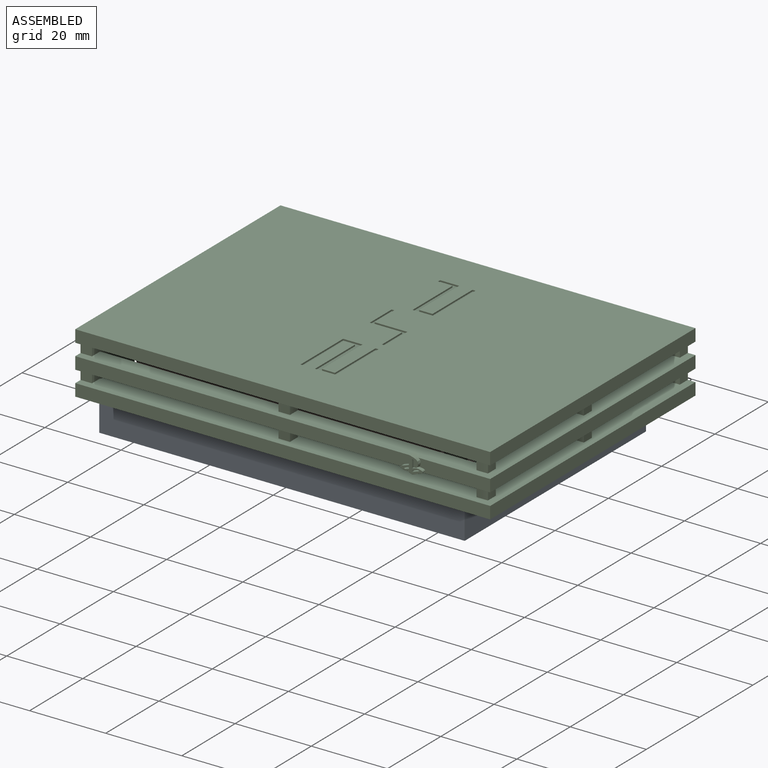
[diagram: assembled view]
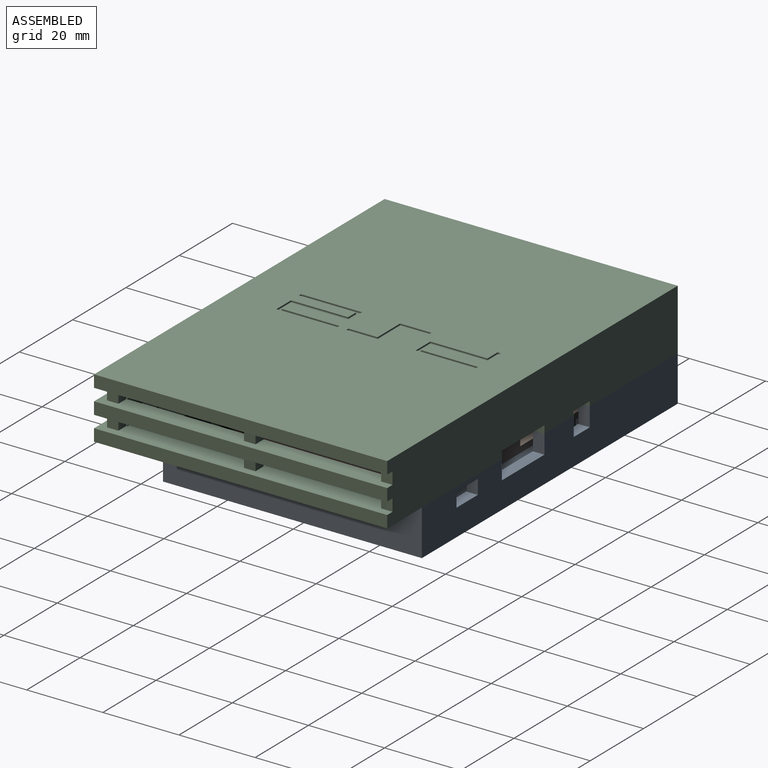
[diagram: assembled view, second angle]
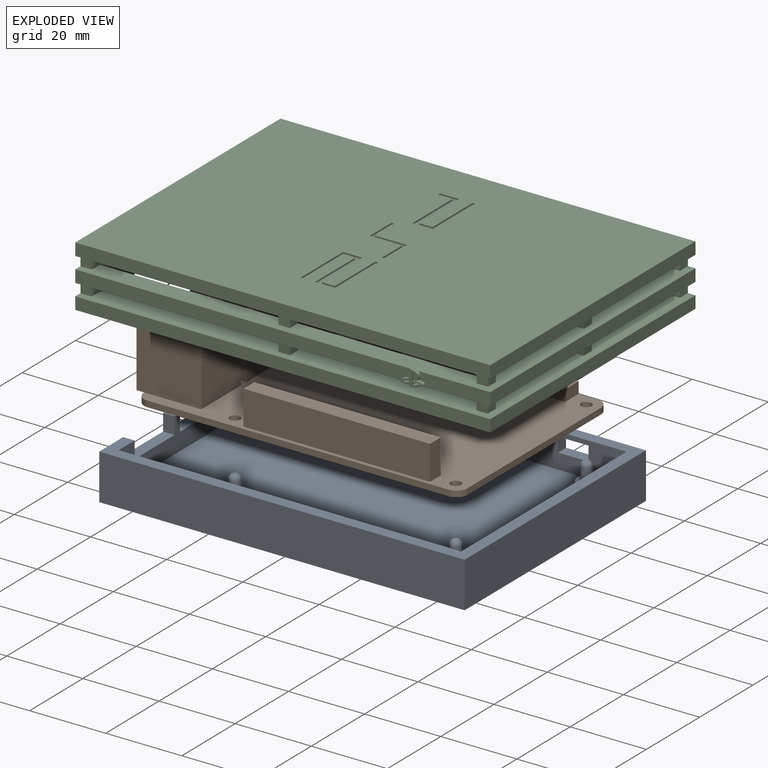
[diagram: exploded view]
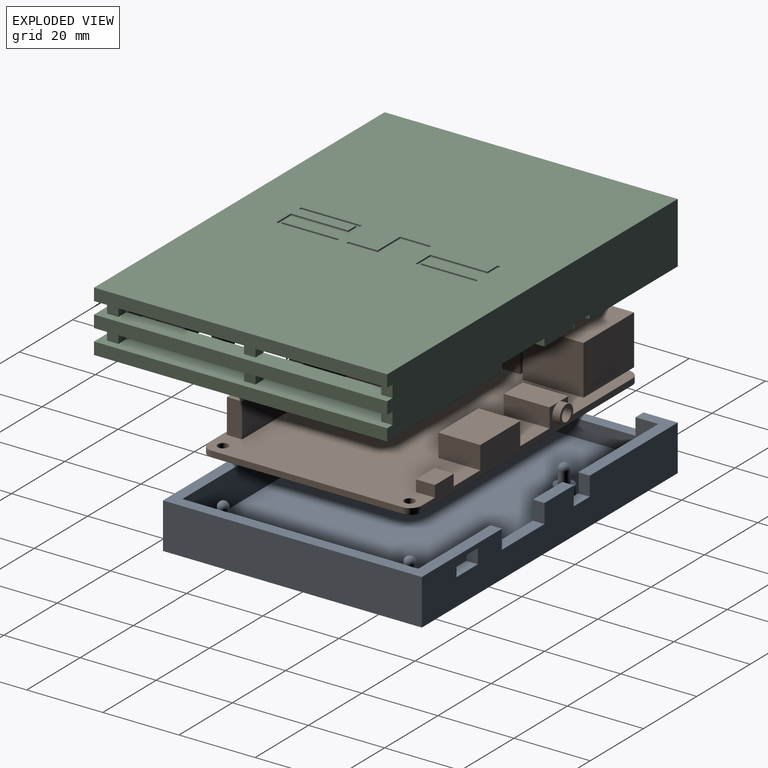
[diagram: exploded view, second angle]
ASSEMBLY  parts=3 mates=2
PART A: 80 faces, bbox 96x68x14 mm
  f0: plane 33x9mm, normal (0,0,1), area 117mm2, adj f2,f3,f8,f9,f37,f77
  f1: plane 11x3mm, normal (0,0,1), area 33mm2, adj f2,f3,f75,f78
  f2: plane 96x12mm, normal (0,-1,0), area 1011.6mm2, adj f0,f1,f4,f7,f8,f12,f70,f71
  f3: plane 90x9mm, normal (0,1,0), area 669.6mm2, adj f0,f1,f7,f9,f10,f13,f70,f71
  f4: plane 96x68mm, normal (0,0,-1), area 6378mm2, adj f2,f8,f11,f12,f40,f41,f42,f43
  f5: plane 3x2mm, normal (0,0,1), area 6mm2, adj f8,f9,f34,f39
  f6: plane 3x2mm, normal (0,0,1), area 6mm2, adj f8,f9,f31,f36
  f7: plane 96x68mm, normal (0,0,1), area 582mm2, adj f2,f3,f8,f9,f11,f12,f13,f14
  f8: plane 68x12mm, normal (1,0,0), area 613.6mm2, adj f0,f2,f4,f5,f6,f7,f11,f31
  f9: plane 62x9mm, normal (-1,0,0), area 355.6mm2, adj f0,f3,f5,f6,f7,f10,f14,f31
  f10: plane 90x62mm, normal (0,0,1), area 5501.5mm2, adj f3,f9,f13,f14,f15,f19,f23,f27
  f11: plane 96x12mm, normal (0,1,0), area 1152mm2, adj f4,f7,f8,f12
  f12: plane 68x12mm, normal (-1,0,0), area 816mm2, adj f2,f4,f7,f11
  f13: plane 62x9mm, normal (1,0,0), area 558mm2, adj f3,f7,f10,f14
  f14: plane 90x9mm, normal (0,-1,0), area 810mm2, adj f7,f9,f10,f13
  f15: cylinder r=2.5mm len=5mm, axis (0,0,-1), area 47.1mm2, adj f10,f16
  f16: plane 5x5mm, normal (0,0,1), area 13.7mm2, adj f15,f18
  f17: sphere r=1.38mm, area 11.9mm2, adj f18
  f18: cylinder r=1.38mm len=3.63mm, axis (0,0,-1), area 31.3mm2, adj f16,f17
  f19: cylinder r=2.5mm len=5mm, axis (0,0,-1), area 47.1mm2, adj f10,f20
  f20: plane 5x5mm, normal (0,0,1), area 13.7mm2, adj f19,f22
  f21: sphere r=1.38mm, area 11.9mm2, adj f22
  f22: cylinder r=1.38mm len=3.63mm, axis (0,0,-1), area 31.3mm2, adj f20,f21
  f23: cylinder r=2.5mm len=5mm, axis (0,0,-1), area 47.1mm2, adj f10,f24
  f24: plane 5x5mm, normal (0,0,1), area 13.7mm2, adj f23,f26
  f25: sphere r=1.38mm, area 11.9mm2, adj f26
  f26: cylinder r=1.38mm len=3.63mm, axis (0,0,-1), area 31.3mm2, adj f24,f25
  f27: cylinder r=2.5mm len=5mm, axis (0,0,-1), area 47.1mm2, adj f10,f28
  f28: plane 5x5mm, normal (0,0,1), area 13.7mm2, adj f27,f30
  f29: sphere r=1.38mm, area 11.9mm2, adj f30
  f30: cylinder r=1.38mm len=3.63mm, axis (0,0,-1), area 31.3mm2, adj f28,f29
  f31: plane 4.4x3mm, normal (0,1,0), area 13.2mm2, adj f6,f8,f9,f32
  f32: plane 15x3mm, normal (0,0,1), area 45mm2, adj f8,f9,f31,f33
  f33: plane 4.4x3mm, normal (0,-1,0), area 13.2mm2, adj f7,f8,f9,f32
  f34: plane 4.4x3mm, normal (0,1,0), area 13.2mm2, adj f5,f8,f9,f35
  f35: plane 15x3mm, normal (0,0,1), area 45mm2, adj f8,f9,f34,f36
  f36: plane 4.4x3mm, normal (0,-1,0), area 13.2mm2, adj f6,f8,f9,f35
  f37: plane 4.4x3mm, normal (0,1,0), area 13.2mm2, adj f0,f8,f9,f38
  f38: plane 16x3mm, normal (0,0,1), area 48mm2, adj f8,f9,f37,f39
  f39: plane 4.4x3mm, normal (0,-1,0), area 13.2mm2, adj f5,f8,f9,f38
  f40: plane 5x2mm, normal (0,-1,0), area 10mm2, adj f4,f41,f43,f44
  f41: plane 5x2mm, normal (-1,0,0), area 10mm2, adj f4,f40,f42,f44
  f42: plane 5x2mm, normal (0,1,0), area 10mm2, adj f4,f41,f43,f44
  f43: plane 5x2mm, normal (1,0,0), area 10mm2, adj f4,f40,f42,f44
  f44: plane 5x5mm, normal (0,0,-1), area 25mm2, adj f40,f41,f42,f43
  f45: plane 5x2mm, normal (0,-1,0), area 10mm2, adj f4,f46,f48,f49
  f46: plane 5x2mm, normal (-1,0,0), area 10mm2, adj f4,f45,f47,f49
  f47: plane 5x2mm, normal (0,1,0), area 10mm2, adj f4,f46,f48,f49
  f48: plane 5x2mm, normal (1,0,0), area 10mm2, adj f4,f45,f47,f49
  f49: plane 5x5mm, normal (0,0,-1), area 25mm2, adj f45,f46,f47,f48
  f50: plane 5x2mm, normal (1,0,0), area 10mm2, adj f4,f51,f53,f54
  f51: plane 5x2mm, normal (0,-1,0), area 10mm2, adj f4,f50,f52,f54
  f52: plane 5x2mm, normal (-1,0,0), area 10mm2, adj f4,f51,f53,f54
  f53: plane 5x2mm, normal (0,1,0), area 10mm2, adj f4,f50,f52,f54
  f54: plane 5x5mm, normal (0,0,-1), area 25mm2, adj f50,f51,f52,f53
  f55: plane 5x2mm, normal (0,1,0), area 10mm2, adj f4,f56,f58,f59
  f56: plane 5x2mm, normal (1,0,0), area 10mm2, adj f4,f55,f57,f59
  f57: plane 5x2mm, normal (0,-1,0), area 10mm2, adj f4,f56,f58,f59
  f58: plane 5x2mm, normal (-1,0,0), area 10mm2, adj f4,f55,f57,f59
  f59: plane 5x5mm, normal (0,0,-1), area 25mm2, adj f55,f56,f57,f58
  f60: plane 5x2mm, normal (1,0,0), area 10mm2, adj f4,f61,f63,f64
  f61: plane 5x2mm, normal (0,-1,0), area 10mm2, adj f4,f60,f62,f64
  f62: plane 5x2mm, normal (-1,0,0), area 10mm2, adj f4,f61,f63,f64
  f63: plane 5x2mm, normal (0,1,0), area 10mm2, adj f4,f60,f62,f64
  f64: plane 5x5mm, normal (0,0,-1), area 25mm2, adj f60,f61,f62,f63
  f65: plane 5x2mm, normal (0,1,0), area 10mm2, adj f4,f66,f68,f69
  f66: plane 5x2mm, normal (1,0,0), area 10mm2, adj f4,f65,f67,f69
  f67: plane 5x2mm, normal (0,-1,0), area 10mm2, adj f4,f66,f68,f69
  f68: plane 5x2mm, normal (-1,0,0), area 10mm2, adj f4,f65,f67,f69
  f69: plane 5x5mm, normal (0,0,-1), area 25mm2, adj f65,f66,f67,f68
  f70: plane 8x3mm, normal (0,0,1), area 24mm2, adj f2,f3,f71,f73
  f71: plane 3.8x3mm, normal (-1,0,0), area 11.4mm2, adj f2,f3,f70,f72
  f72: plane 8x3mm, normal (0,0,-1), area 24mm2, adj f2,f3,f71,f73
  f73: plane 3.8x3mm, normal (1,0,0), area 11.4mm2, adj f2,f3,f70,f72
  f74: plane 16x3mm, normal (0,0,1), area 48mm2, adj f2,f3,f75,f76
  f75: plane 5x3mm, normal (-1,0,0), area 15mm2, adj f1,f2,f3,f74
  f76: plane 5x3mm, normal (1,0,0), area 15mm2, adj f2,f3,f7,f74
  f77: plane 5x3mm, normal (-1,0,0), area 15mm2, adj f0,f2,f3,f79
  f78: plane 5x3mm, normal (1,0,0), area 15mm2, adj f1,f2,f3,f79
  f79: plane 6x3mm, normal (0,0,1), area 18mm2, adj f2,f3,f77,f78
PART B: 86 faces, bbox 87x58x17.6 mm
  f0: plane 16x13mm, normal (1,0,0), area 95mm2, adj f27,f28,f29,f31,f69,f70,f71,f72
  f1: plane 16x15mm, normal (1,0,0), area 156mm2, adj f17,f18,f19,f21,f59,f60,f61,f62
  f2: plane 16x15mm, normal (1,0,0), area 156mm2, adj f22,f24,f25,f26,f49,f50,f51,f52
  f3: plane 85x56mm, normal (0,0,1), area 3526.5mm2, adj f4,f5,f6,f7,f8,f9,f10,f11
  f4: plane 79x1.6mm, normal (0,1,0), area 126.4mm2, adj f3,f5,f13,f16
  f5: cylinder r=3mm len=3mm, axis (0,0,1), area 7.5mm2, adj f3,f4,f6,f16
  f6: plane 50x1.6mm, normal (-1,0,0), area 80mm2, adj f3,f5,f7,f16
  f7: cylinder r=3mm len=3mm, axis (0,0,1), area 7.5mm2, adj f3,f6,f8,f16
  f8: plane 79x7.6mm, normal (0,-1,0), area 252.8mm2, adj f3,f7,f9,f16,f32,f34,f35,f36
  f9: cylinder r=3mm len=3mm, axis (0,0,1), area 7.5mm2, adj f3,f8,f10,f16
  f10: plane 50x1.6mm, normal (1,0,0), area 80mm2, adj f3,f9,f13,f16,f17,f26,f27
  f11: cylinder r=1.38mm len=2.75mm, axis (0,0,1), area 13.8mm2, adj f3,f16
  f12: cylinder r=1.38mm len=2.75mm, axis (0,0,1), area 13.8mm2, adj f3,f16
  f13: cylinder r=3mm len=3mm, axis (0,0,1), area 7.5mm2, adj f3,f4,f10,f16
  f14: cylinder r=1.38mm len=2.75mm, axis (0,0,1), area 13.8mm2, adj f3,f16
  f15: cylinder r=1.38mm len=2.75mm, axis (0,0,1), area 13.8mm2, adj f3,f16
  f16: plane 85x56mm, normal (0,0,-1), area 4728.5mm2, adj f4,f5,f6,f7,f8,f9,f10,f11
  f17: plane 15x2mm, normal (0,0,-1), area 30mm2, adj f1,f10,f18,f19
  f18: plane 17x16mm, normal (0,-1,0), area 272mm2, adj f1,f3,f17,f20,f21
  f19: plane 17x16mm, normal (0,1,0), area 272mm2, adj f1,f3,f17,f20,f21
  f20: plane 16x15mm, normal (-1,0,0), area 240mm2, adj f3,f18,f19,f21
  f21: plane 17x15mm, normal (0,0,1), area 255mm2, adj f1,f18,f19,f20
  f22: plane 17x16mm, normal (0,1,0), area 272mm2, adj f2,f3,f23,f25,f26
  f23: plane 16x15mm, normal (-1,0,0), area 240mm2, adj f3,f22,f24,f25
  f24: plane 17x16mm, normal (0,-1,0), area 272mm2, adj f2,f3,f23,f25,f26
  f25: plane 17x15mm, normal (0,0,1), area 255mm2, adj f2,f22,f23,f24
  f26: plane 15x2mm, normal (0,0,-1), area 30mm2, adj f2,f10,f22,f24
  f27: plane 16x2mm, normal (0,0,-1), area 32mm2, adj f0,f10,f28,f29
  f28: plane 19x13mm, normal (0,-1,0), area 247mm2, adj f0,f3,f27,f30,f31
  f29: plane 19x13mm, normal (0,1,0), area 247mm2, adj f0,f3,f27,f30,f31
  f30: plane 16x13mm, normal (-1,0,0), area 208mm2, adj f3,f28,f29,f31
  f31: plane 19x16mm, normal (0,0,1), area 304mm2, adj f0,f28,f29,f30
  f32: plane 12x5mm, normal (1,0,0), area 60mm2, adj f3,f8,f33,f35
  f33: plane 7x5mm, normal (0,1,0), area 35mm2, adj f3,f32,f34,f35
  f34: plane 12x5mm, normal (-1,0,0), area 60mm2, adj f3,f8,f33,f35
  f35: plane 12x7mm, normal (0,0,1), area 84mm2, adj f8,f32,f33,f34
  f36: plane 11x6mm, normal (1,0,0), area 66mm2, adj f3,f8,f37,f39
  f37: plane 15x6mm, normal (0,1,0), area 90mm2, adj f3,f36,f38,f39
  f38: plane 11x6mm, normal (-1,0,0), area 66mm2, adj f3,f8,f37,f39
  f39: plane 15x11mm, normal (0,0,1), area 165mm2, adj f8,f36,f37,f38
  f40: plane 7x3mm, normal (0,1,0), area 21mm2, adj f3,f41,f42,f43
  f41: plane 5x3mm, normal (-1,0,0), area 15mm2, adj f3,f8,f40,f43
  f42: plane 5x3mm, normal (1,0,0), area 15mm2, adj f3,f8,f40,f43
  f43: plane 7x5mm, normal (0,0,1), area 35mm2, adj f8,f40,f41,f42
  f44: plane 49x9mm, normal (0,1,0), area 441mm2, adj f3,f45,f47,f48
  f45: plane 9x4mm, normal (-1,0,0), area 36mm2, adj f3,f44,f46,f48
  f46: plane 49x9mm, normal (0,-1,0), area 441mm2, adj f3,f45,f47,f48
  f47: plane 9x4mm, normal (1,0,0), area 36mm2, adj f3,f44,f46,f48
  f48: plane 49x4mm, normal (0,0,1), area 196mm2, adj f44,f45,f46,f47
  f49: plane 9x3.5mm, normal (0,-1,0), area 31.5mm2, adj f2,f50,f52,f53
  f50: plane 12x9mm, normal (0,0,-1), area 108mm2, adj f2,f49,f51,f53
  f51: plane 9x3.5mm, normal (0,1,0), area 31.5mm2, adj f2,f50,f52,f53
  f52: plane 12x9mm, normal (0,0,1), area 108mm2, adj f2,f49,f51,f53
  f53: plane 12x3.5mm, normal (1,0,0), area 42mm2, adj f49,f50,f51,f52
  f54: plane 12x9mm, normal (0,0,-1), area 108mm2, adj f2,f55,f57,f58
  f55: plane 9x3.5mm, normal (0,1,0), area 31.5mm2, adj f2,f54,f56,f58
  f56: plane 12x9mm, normal (0,0,1), area 108mm2, adj f2,f55,f57,f58
  f57: plane 9x3.5mm, normal (0,-1,0), area 31.5mm2, adj f2,f54,f56,f58
  f58: plane 12x3.5mm, normal (1,0,0), area 42mm2, adj f54,f55,f56,f57
  f59: plane 9x3.5mm, normal (0,-1,0), area 31.5mm2, adj f1,f60,f62,f63
  f60: plane 12x9mm, normal (0,0,-1), area 108mm2, adj f1,f59,f61,f63
  f61: plane 9x3.5mm, normal (0,1,0), area 31.5mm2, adj f1,f60,f62,f63
  f62: plane 12x9mm, normal (0,0,1), area 108mm2, adj f1,f59,f61,f63
  f63: plane 12x3.5mm, normal (1,0,0), area 42mm2, adj f59,f60,f61,f62
  f64: plane 12x9mm, normal (0,0,-1), area 108mm2, adj f1,f65,f67,f68
  f65: plane 9x3.5mm, normal (0,1,0), area 31.5mm2, adj f1,f64,f66,f68
  f66: plane 12x9mm, normal (0,0,1), area 108mm2, adj f1,f65,f67,f68
  f67: plane 9x3.5mm, normal (0,-1,0), area 31.5mm2, adj f1,f64,f66,f68
  f68: plane 12x3.5mm, normal (1,0,0), area 42mm2, adj f64,f65,f66,f67
  f69: plane 14x10.5mm, normal (0,0,-1), area 147mm2, adj f0,f70,f80,f81
  f70: plane 10.5x7mm, normal (0,1,0), area 73.5mm2, adj f0,f69,f71,f81
  f71: plane 10.5x4mm, normal (0,0,1), area 42mm2, adj f0,f70,f72,f81
  f72: plane 10.5x2mm, normal (0,1,0), area 21mm2, adj f0,f71,f73,f81
  f73: plane 10.5x1.5mm, normal (0,0,1), area 15.8mm2, adj f0,f72,f74,f81
  f74: plane 10.5x1mm, normal (0,1,0), area 10.5mm2, adj f0,f73,f75,f81
  f75: plane 10.5x3mm, normal (0,0,1), area 31.5mm2, adj f0,f74,f76,f81
  f76: plane 10.5x1mm, normal (0,-1,0), area 10.5mm2, adj f0,f75,f77,f81
  f77: plane 10.5x1.5mm, normal (0,0,1), area 15.7mm2, adj f0,f76,f78,f81
  f78: plane 10.5x2mm, normal (0,-1,0), area 21mm2, adj f0,f77,f79,f81
  f79: plane 10.5x4mm, normal (0,0,1), area 42mm2, adj f0,f78,f80,f81
  f80: plane 10.5x7mm, normal (0,-1,0), area 73.5mm2, adj f0,f69,f79,f81
  f81: plane 14x10mm, normal (1,0,0), area 113mm2, adj f69,f70,f71,f72,f73,f74,f75,f76
  f82: cylinder r=2.5mm len=5mm, axis (0,1,0), area 31.4mm2, adj f8,f83
  f83: plane 5x5mm, normal (0,-1,0), area 10mm2, adj f82,f84
  f84: cylinder r=1.75mm len=5mm, axis (0,-1,0), area 55mm2, adj f83,f85
  f85: plane 3.5x3.5mm, normal (0,-1,0), area 9.6mm2, adj f84
PART C: 158 faces, bbox 109x78x20.4 mm
  f0: plane 11x3mm, normal (0,0,-1), area 33mm2, adj f2,f3,f152,f156
  f1: plane 33x9mm, normal (0,0,-1), area 117mm2, adj f2,f3,f24,f27,f149,f153
  f2: plane 109x16mm, normal (0,1,0), area 1692mm2, adj f0,f1,f6,f12,f13,f24,f28,f29
  f3: plane 104x13mm, normal (0,-1,0), area 1260mm2, adj f0,f1,f6,f12,f13,f23,f25,f27
  f4: plane 3x2mm, normal (0,0,-1), area 6mm2, adj f24,f27,f146,f150
  f5: plane 3x2mm, normal (0,0,-1), area 6mm2, adj f24,f27,f144,f147
  f6: plane 109x77mm, normal (0,0,-1), area 855.6mm2, adj f2,f3,f7,f8,f9,f12,f14,f19
  f7: plane 19.8x3.21mm, normal (0,-1,0), area 58.7mm2, adj f6,f51,f65,f120,f128,f129,f130,f131
  f8: plane 3.2x3mm, normal (1,0,0), area 9.6mm2, adj f6,f21,f53,f60
  f9: plane 3.2x3mm, normal (1,0,0), area 9.6mm2, adj f6,f53,f61,f62
  f10: plane 3.2x3mm, normal (1,0,0), area 9.6mm2, adj f18,f51,f52,f58
  f11: plane 3.2x3mm, normal (1,0,0), area 9.6mm2, adj f51,f52,f59,f63
  f12: plane 3.2x3mm, normal (1,0,0), area 9.6mm2, adj f2,f3,f6,f53
  f13: plane 3.2x3mm, normal (1,0,0), area 9.6mm2, adj f2,f3,f51,f52
  f14: plane 3.2x3mm, normal (-1,0,0), area 9.6mm2, adj f6,f21,f53,f60
  f15: plane 3.2x3mm, normal (-1,0,0), area 9.6mm2, adj f18,f51,f52,f58
  f16: plane 3.2x3mm, normal (0,-1,0), area 9.6mm2, adj f24,f27,f51,f52
  f17: plane 3.2x3mm, normal (0,-1,0), area 9.6mm2, adj f48,f50,f51,f52
  f18: plane 3.2x3mm, normal (0,-1,0), area 9.6mm2, adj f10,f15,f51,f52
  f19: plane 3.2x3mm, normal (0,-1,0), area 9.6mm2, adj f6,f24,f27,f53
  f20: plane 3.2x3mm, normal (0,-1,0), area 9.6mm2, adj f6,f49,f53,f54
  f21: plane 3.2x3mm, normal (0,-1,0), area 9.6mm2, adj f6,f8,f14,f53
  f22: plane 101x10mm, normal (0,1,0), area 382.8mm2, adj f6,f23,f27,f30,f31,f48,f49,f50
  f23: plane 101x69mm, normal (0,0,-1), area 6890.5mm2, adj f3,f22,f27,f30,f32,f36,f41,f44
  f24: plane 77x16mm, normal (-1,0,0), area 733.6mm2, adj f1,f2,f4,f5,f6,f16,f19,f28
  f25: plane 62x3mm, normal (-1,0,0), area 186mm2, adj f3,f26,f28,f31
  f26: plane 90x3mm, normal (0,1,0), area 270mm2, adj f25,f27,f28,f31
  f27: plane 72x13mm, normal (1,0,0), area 409.6mm2, adj f1,f3,f4,f5,f6,f16,f19,f22
  f28: plane 109x77mm, normal (0,0,-1), area 2393.6mm2, adj f2,f3,f24,f25,f26,f27,f56,f66
  f29: plane 109x77mm, normal (0,0,1), area 8284.7mm2, adj f2,f24,f55,f64,f84,f85,f86,f87
  f30: plane 69x10mm, normal (-1,0,0), area 267.6mm2, adj f3,f6,f22,f23,f31,f51,f52,f53
  f31: plane 101x69mm, normal (0,0,1), area 1335.6mm2, adj f3,f22,f25,f26,f27,f30,f67,f68
  f32: cylinder r=2.5mm len=17.4mm, axis (0,0,1), area 273.3mm2, adj f23,f34
  f33: cylinder r=1.38mm len=17.4mm, axis (0,0,1), area 150.3mm2, adj f34,f35
  f34: plane 5x5mm, normal (0,0,-1), area 13.7mm2, adj f32,f33
  f35: plane 2.75x2.75mm, normal (0,0,-1), area 5.9mm2, adj f33
  f36: cylinder r=2.5mm len=17.4mm, axis (0,0,1), area 273.3mm2, adj f23,f38
  f37: cylinder r=1.38mm len=17.4mm, axis (0,0,1), area 150.3mm2, adj f38,f39
  f38: plane 5x5mm, normal (0,0,-1), area 13.7mm2, adj f36,f37
  f39: plane 2.75x2.75mm, normal (0,0,-1), area 5.9mm2, adj f37
  f40: cylinder r=1.38mm len=17.4mm, axis (0,0,1), area 150.3mm2, adj f42,f43
  f41: cylinder r=2.5mm len=17.4mm, axis (0,0,1), area 273.3mm2, adj f23,f42
  f42: plane 5x5mm, normal (0,0,-1), area 13.7mm2, adj f40,f41
  f43: plane 2.75x2.75mm, normal (0,0,-1), area 5.9mm2, adj f40
  f44: cylinder r=2.5mm len=17.4mm, axis (0,0,1), area 273.3mm2, adj f23,f46
  f45: cylinder r=1.38mm len=17.4mm, axis (0,0,1), area 150.3mm2, adj f46,f47
  f46: plane 5x5mm, normal (0,0,-1), area 13.7mm2, adj f44,f45
  f47: plane 2.75x2.75mm, normal (0,0,-1), area 5.9mm2, adj f45
  f48: plane 3.2x3mm, normal (-1,0,0), area 9.6mm2, adj f17,f22,f51,f52
  f49: plane 3.2x3mm, normal (1,0,0), area 9.6mm2, adj f6,f20,f22,f53
  f50: plane 3.2x3mm, normal (1,0,0), area 9.6mm2, adj f17,f22,f51,f52
  f51: plane 109x77mm, normal (0,0,1), area 858.2mm2, adj f2,f3,f7,f10,f11,f13,f15,f16
  f52: plane 109x77mm, normal (0,0,-1), area 860mm2, adj f2,f3,f10,f11,f13,f15,f16,f17
  f53: plane 109x77mm, normal (0,0,1), area 860mm2, adj f2,f3,f8,f9,f12,f14,f19,f20
  f54: plane 3.2x3mm, normal (-1,0,0), area 9.6mm2, adj f6,f20,f22,f53
  f55: plane 109x3.2mm, normal (0,-1,0), area 348.8mm2, adj f24,f29,f52,f64
  f56: plane 109x3.2mm, normal (0,-1,0), area 348.8mm2, adj f24,f28,f53,f66
  f57: plane 88.35x3.24mm, normal (0,-1,0), area 280.6mm2, adj f6,f24,f51,f119,f125
  f58: plane 3.2x3mm, normal (0,1,0), area 9.6mm2, adj f10,f15,f51,f52
  f59: plane 3.2x3mm, normal (0,-1,0), area 9.6mm2, adj f11,f30,f51,f52
  f60: plane 3.2x3mm, normal (0,1,0), area 9.6mm2, adj f6,f8,f14,f53
  f61: plane 3.2x3mm, normal (0,-1,0), area 9.6mm2, adj f6,f9,f30,f53
  f62: plane 3.2x3mm, normal (0,1,0), area 9.6mm2, adj f6,f9,f30,f53
  f63: plane 3.2x3mm, normal (0,1,0), area 9.6mm2, adj f11,f30,f51,f52
  f64: plane 77x3.2mm, normal (1,0,0), area 246.4mm2, adj f2,f29,f52,f55
  f65: plane 77x3.2mm, normal (1,0,0), area 246.4mm2, adj f2,f6,f7,f51
  f66: plane 77x3.2mm, normal (1,0,0), area 246.4mm2, adj f2,f28,f53,f56
  f67: cylinder r=1mm len=3mm, axis (0,0,-1), area 18.8mm2, adj f28,f31
  f68: cylinder r=1mm len=3mm, axis (0,0,-1), area 18.8mm2, adj f28,f31
  f69: cylinder r=1mm len=3mm, axis (0,0,-1), area 18.8mm2, adj f28,f31
  f70: cylinder r=1mm len=3mm, axis (0,0,-1), area 18.8mm2, adj f28,f31
  f71: cylinder r=1mm len=3mm, axis (0,0,-1), area 18.8mm2, adj f28,f31
  f72: cylinder r=1mm len=3mm, axis (0,0,-1), area 18.8mm2, adj f28,f31
  f73: cylinder r=1mm len=3mm, axis (0,0,-1), area 18.8mm2, adj f28,f31
  f74: cylinder r=1mm len=3mm, axis (0,0,-1), area 18.8mm2, adj f28,f31
  f75: cylinder r=1mm len=3mm, axis (0,0,-1), area 18.8mm2, adj f28,f31
  f76: cylinder r=1mm len=3mm, axis (0,0,-1), area 18.8mm2, adj f28,f31
  f77: cylinder r=1mm len=3mm, axis (0,0,-1), area 18.8mm2, adj f28,f31
  f78: cylinder r=1mm len=3mm, axis (0,0,-1), area 18.8mm2, adj f28,f31
  f79: cylinder r=1mm len=3mm, axis (0,0,-1), area 18.8mm2, adj f28,f31
  f80: cylinder r=1mm len=3mm, axis (0,0,-1), area 18.8mm2, adj f28,f31
  f81: cylinder r=1mm len=3mm, axis (0,0,-1), area 18.8mm2, adj f28,f31
  f82: cylinder r=1mm len=3mm, axis (0,0,-1), area 18.8mm2, adj f28,f31
  f83: cylinder r=1mm len=3mm, axis (0,0,-1), area 18.8mm2, adj f28,f31
  f84: plane 0.8x0.4mm, normal (0,-1,0), area 0.3mm2, adj f29,f85,f95,f96
  f85: plane 15.2x0.4mm, normal (1,0,0), area 6.1mm2, adj f29,f84,f86,f96
  f86: plane 3.4x0.4mm, normal (0,-1,0), area 1.4mm2, adj f29,f85,f87,f96
  f87: plane 15.2x0.4mm, normal (-1,0,0), area 6.1mm2, adj f29,f86,f88,f96
  f88: plane 5.1x0.4mm, normal (0,-1,0), area 2mm2, adj f29,f87,f89,f96
  f89: plane 16x0.4mm, normal (1,0,0), area 6.4mm2, adj f29,f88,f90,f96
  f90: plane 0.8x0.4mm, normal (0,1,0), area 0.3mm2, adj f29,f89,f91,f96
  f91: plane 15x0.4mm, normal (-1,0,0), area 6mm2, adj f29,f90,f92,f96
  f92: plane 3x0.4mm, normal (0,1,0), area 1.2mm2, adj f29,f91,f93,f96
  f93: plane 15x0.4mm, normal (1,0,0), area 6mm2, adj f29,f92,f94,f96
  f94: plane 5.5x0.4mm, normal (0,1,0), area 2.2mm2, adj f29,f93,f95,f96
  f95: plane 16x0.4mm, normal (-1,0,0), area 6.4mm2, adj f29,f84,f94,f96
  f96: plane 16x9.3mm, normal (0,0,1), area 52.1mm2, adj f84,f85,f86,f87,f88,f89,f90,f91
  f97: plane 8.5x0.4mm, normal (0,1,0), area 3.4mm2, adj f29,f98,f104,f105
  f98: plane 7.6x0.4mm, normal (1,0,0), area 3mm2, adj f29,f97,f99,f105
  f99: plane 0.8x0.4mm, normal (0,1,0), area 0.3mm2, adj f29,f98,f100,f105
  f100: plane 8.4x0.4mm, normal (-1,0,0), area 3.4mm2, adj f29,f99,f101,f105
  f101: plane 8.6x0.4mm, normal (0,-1,0), area 3.4mm2, adj f29,f100,f102,f105
  f102: plane 7.4x0.4mm, normal (-1,0,0), area 3mm2, adj f29,f101,f103,f105
  f103: plane 0.7x0.4mm, normal (0,-1,0), area 0.3mm2, adj f29,f102,f104,f105
  f104: plane 8.2x0.4mm, normal (1,0,0), area 3.3mm2, adj f29,f97,f103,f105
  f105: plane 15.8x9.3mm, normal (0,0,1), area 18.7mm2, adj f97,f98,f99,f100,f101,f102,f103,f104
  f106: plane 0.8x0.4mm, normal (0,-1,0), area 0.3mm2, adj f29,f107,f115,f116
  f107: plane 15x0.4mm, normal (1,0,0), area 6mm2, adj f29,f106,f108,f116
  f108: plane 3.5x0.4mm, normal (0,-1,0), area 1.4mm2, adj f29,f107,f109,f116
  f109: plane 15x0.4mm, normal (-1,0,0), area 6mm2, adj f29,f108,f110,f116
  f110: plane 5x0.4mm, normal (0,-1,0), area 2mm2, adj f29,f109,f111,f116
  f111: plane 0.8x0.4mm, normal (1,0,0), area 0.3mm2, adj f29,f110,f112,f116
  f112: plane 3.8x0.4mm, normal (0,1,0), area 1.5mm2, adj f29,f111,f113,f116
  f113: plane 15x0.4mm, normal (1,0,0), area 6mm2, adj f29,f112,f114,f116
  f114: plane 5.5x0.4mm, normal (0,1,0), area 2.2mm2, adj f29,f113,f115,f116
  f115: plane 15.8x0.4mm, normal (-1,0,0), area 6.3mm2, adj f29,f106,f114,f116
  f116: plane 15.8x9.3mm, normal (0,0,1), area 37.4mm2, adj f106,f107,f108,f109,f110,f111,f112,f113
  f117: plane 1x0.05mm, normal (0,0,1), area 0.1mm2, adj f121,f138,f139,f141
  f118: plane 1.8x0.58mm, normal (0,1,0), area 0.6mm2, adj f51,f119,f120,f137
  f119: plane 2.39x2mm, normal (-1,0,0), area 3mm2, adj f51,f57,f118,f125,f137,f139
  f120: extruded ~2.01x2mm, area 4.3mm2, adj f7,f51,f118,f135,f137,f139
  f121: plane 1x0.28mm, normal (1,0,0), area 0.3mm2, adj f117,f122,f139,f141
  f122: extruded ~1x0.02mm, area 0mm2, adj f121,f138,f139,f141
  f123: extruded ~1.27x1mm, area 2.8mm2, adj f124,f136,f139,f142
  f124: extruded ~1x0.01mm, area 0mm2, adj f123,f136,f139,f142
  f125: extruded ~2.23x2mm, area 6.7mm2, adj f6,f57,f119,f126,f139,f140
  f126: plane 2x0.28mm, normal (-1,0,0), area 0.6mm2, adj f125,f127,f139,f140
  f127: plane 2x0.85mm, normal (-0.33,0,-0.94), area 1.8mm2, adj f126,f128,f139,f140
  f128: plane 2.17x2mm, normal (0.33,0,-0.95), area 4.2mm2, adj f6,f7,f127,f129,f139,f140
  f129: extruded ~1x0.53mm, area 0.7mm2, adj f7,f128,f130,f139
  f130: plane 1x0.14mm, normal (1,0,0), area 0.1mm2, adj f7,f129,f131,f139
  f131: extruded ~2.69x1mm, area 2.9mm2, adj f7,f130,f132,f139
  f132: plane 1.89x1mm, normal (1,0,0), area 1.9mm2, adj f7,f131,f133,f139
  f133: extruded ~1x0.41mm, area 0.7mm2, adj f7,f132,f134,f139
  f134: plane 1.51x1mm, normal (-1,0,0), area 1.5mm2, adj f7,f133,f135,f139
  f135: extruded ~1.04x1mm, area 1.2mm2, adj f7,f120,f134,f139
  f136: plane 1x0.35mm, normal (-1,0,0), area 0.4mm2, adj f123,f124,f139,f142
  f137: extruded ~2x0.65mm, area 1.3mm2, adj f118,f119,f120,f139
  f138: extruded ~1.86x1mm, area 3.9mm2, adj f117,f122,f139,f141
  f139: plane 5.82x4.41mm, normal (0,-1,0), area 10.2mm2, adj f117,f119,f120,f121,f122,f123,f124,f125
  f140: plane 4.42x0.63mm, normal (0,1,0), area 1.2mm2, adj f6,f125,f126,f127,f128
  f141: plane 1.94x0.79mm, normal (0,-1,0), area 0.6mm2, adj f117,f121,f122,f138
  f142: plane 1.29x0.69mm, normal (0,-1,0), area 0.4mm2, adj f123,f124,f136
  f143: plane 15x3mm, normal (0,0,-1), area 45mm2, adj f24,f27,f144,f145
  f144: plane 11.6x3mm, normal (0,-1,0), area 34.8mm2, adj f5,f24,f27,f143
  f145: plane 11.6x3mm, normal (0,1,0), area 34.8mm2, adj f24,f27,f28,f143
  f146: plane 11.6x3mm, normal (0,-1,0), area 34.8mm2, adj f4,f24,f27,f148
  f147: plane 11.6x3mm, normal (0,1,0), area 34.8mm2, adj f5,f24,f27,f148
  f148: plane 15x3mm, normal (0,0,-1), area 45mm2, adj f24,f27,f146,f147
  f149: plane 8.6x3mm, normal (0,-1,0), area 25.8mm2, adj f1,f24,f27,f151
  f150: plane 8.6x3mm, normal (0,1,0), area 25.8mm2, adj f4,f24,f27,f151
  f151: plane 16x3mm, normal (0,0,-1), area 48mm2, adj f24,f27,f149,f150
  f152: plane 3x1.2mm, normal (-1,0,0), area 3.6mm2, adj f0,f2,f3,f154
  f153: plane 3x1.2mm, normal (1,0,0), area 3.6mm2, adj f1,f2,f3,f154
  f154: plane 6x3mm, normal (0,0,-1), area 18mm2, adj f2,f3,f152,f153
  f155: plane 3x2mm, normal (-1,0,0), area 6mm2, adj f2,f3,f28,f157
  f156: plane 3x2mm, normal (1,0,0), area 6mm2, adj f0,f2,f3,f157
  f157: plane 16x3mm, normal (0,0,-1), area 48mm2, adj f2,f3,f155,f156
PLACE A rot(axis=(0,0,-1),180deg) t=(64.37,82.45,114.34)mm
PLACE B rot(axis=(0,0,-1),180deg) t=(64.37,82.45,118.94)mm
PLACE C t=(64.37,82.45,136.34)mm
MATE parallel C.f32 <-> B.f14  axis (0,0,-1) through (103.37,106.95,118.94)mm
MATE fastened A.f19 <-> B.f14  axis (0,0,1) through (103.37,106.95,117.34)mm
